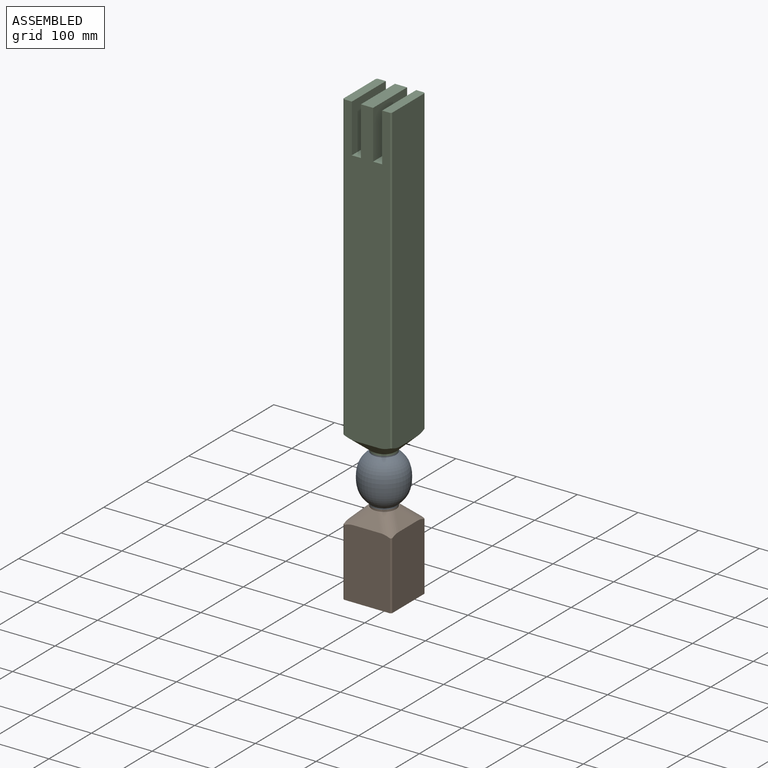
[diagram: assembled view]
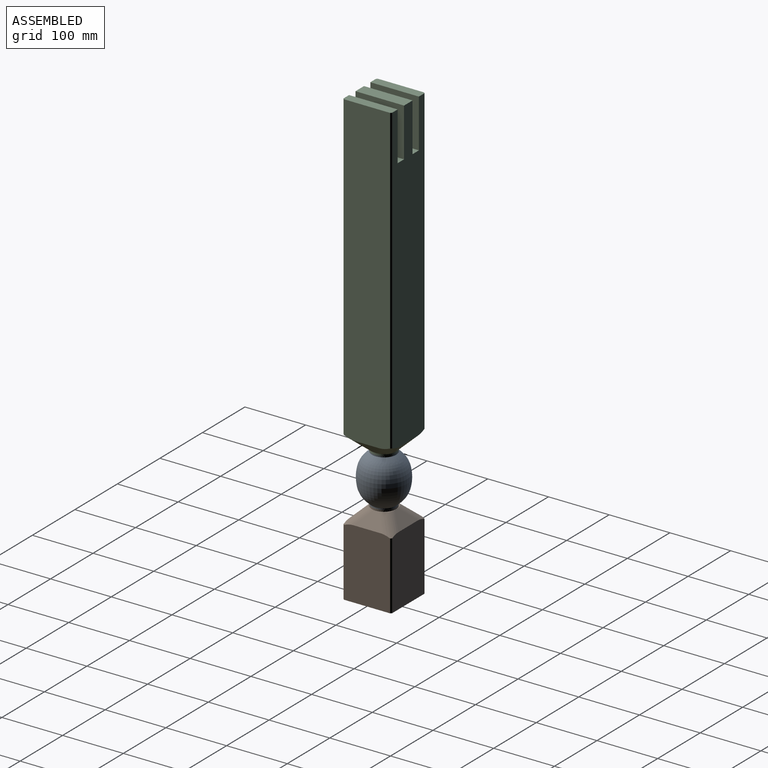
[diagram: assembled view, second angle]
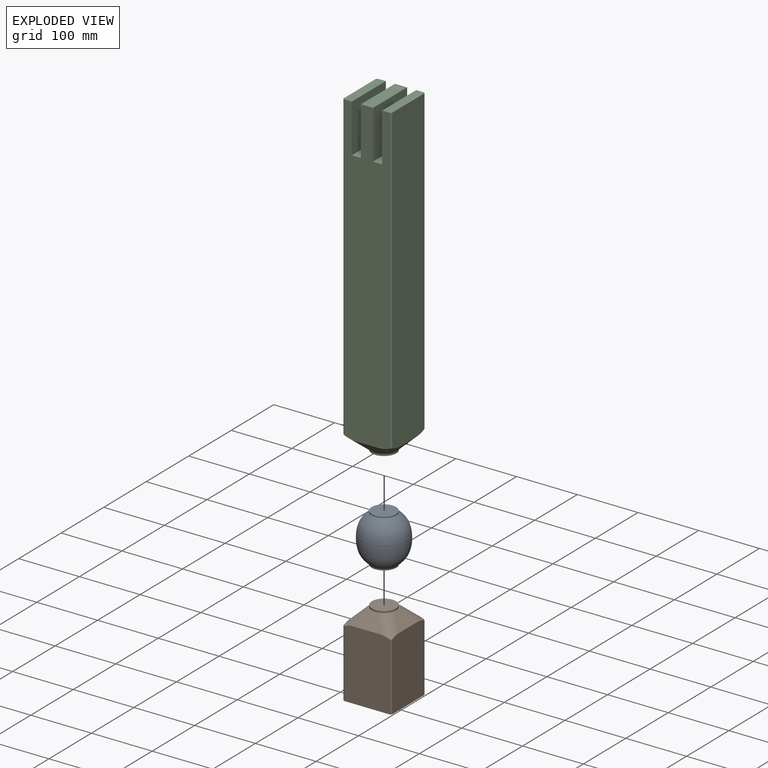
[diagram: exploded view]
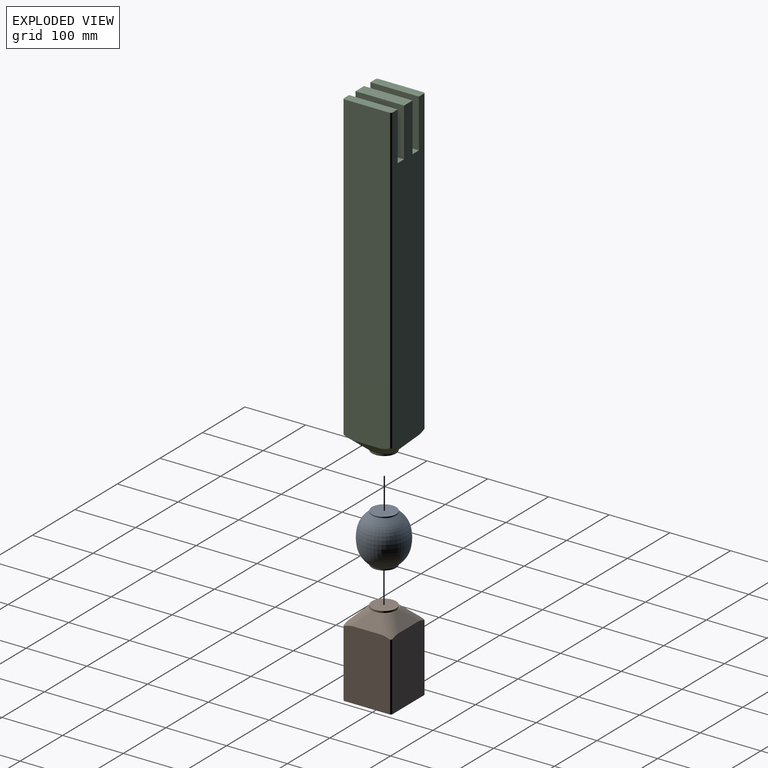
[diagram: exploded view, second angle]
ASSEMBLY  parts=3 mates=2
PART A: 5 faces, bbox 76.1x80x76.1 mm
  f0: plane 40x40mm, normal (0,-1,0), area 1256.6mm2, adj f4
  f1: plane 40x40mm, normal (0,1,0), area 1256.6mm2, adj f2
  f2: cylinder r=20mm len=40mm, axis (0,-1,0), area 251.3mm2, adj f1,f3
  f3: revolved ~76.13x76.13mm, area 17733.7mm2, adj f2,f4
  f4: cylinder r=20mm len=40mm, axis (0,-1,0), area 251.3mm2, adj f0,f3
PART B: 23 faces, bbox 92.4x92.4x138 mm
  f0: plane 20x20mm, normal (0,0,1), area 31.8mm2, adj f4,f11,f13,f18
  f1: plane 20x20mm, normal (0,0,1), area 31.8mm2, adj f3,f11,f13,f17
  f2: plane 20x20mm, normal (0,0,1), area 31.8mm2, adj f4,f11,f14,f16
  f3: plane 45.92x20mm, normal (0,0.71,0.71), area 733.1mm2, adj f1,f6,f9,f15,f17
  f4: plane 45.92x20mm, normal (0,-0.71,0.71), area 733.1mm2, adj f0,f2,f8,f16,f18
  f5: plane 115x76mm, normal (1,0,0), area 8702.3mm2, adj f10,f14,f15,f16,f20,f21
  f6: plane 20x20mm, normal (0,0,1), area 31.8mm2, adj f3,f11,f14,f15
  f7: plane 115x76mm, normal (-1,0,0), area 8702.3mm2, adj f10,f13,f17,f18,f19,f22
  f8: plane 115x76mm, normal (0,-1,0), area 8702.3mm2, adj f4,f10,f16,f18,f21,f22
  f9: plane 115x76mm, normal (0,1,0), area 8702.3mm2, adj f3,f10,f15,f17,f19,f20
  f10: plane 80x80mm, normal (0,0,-1), area 6392mm2, adj f5,f7,f8,f9,f19,f20,f21,f22
  f11: cylinder r=20mm len=40mm, axis (0,0,-1), area 377mm2, adj f0,f1,f2,f6,f12
  f12: plane 40x40mm, normal (0,0,1), area 1256.6mm2, adj f11
  f13: plane 45.92x20mm, normal (-0.71,0,0.71), area 733.1mm2, adj f0,f1,f7,f17,f18
  f14: plane 45.92x20mm, normal (0.71,0,0.71), area 733.1mm2, adj f2,f5,f6,f15,f16
  f15: cylinder r=24.1mm len=43.26mm, axis (0.58,0.58,-0.58), area 938.9mm2, adj f3,f5,f6,f9,f14,f20
  f16: cylinder r=24.1mm len=43.26mm, axis (-0.58,0.58,0.58), area 938.9mm2, adj f2,f4,f5,f8,f14,f21
  f17: cylinder r=24.1mm len=43.26mm, axis (0.58,-0.58,0.58), area 938.9mm2, adj f1,f3,f7,f9,f13,f19
  f18: cylinder r=24.1mm len=43.26mm, axis (-0.58,-0.58,-0.58), area 938.9mm2, adj f0,f4,f7,f8,f13,f22
  f19: plane 111.43x2mm, normal (-0.71,0.71,0), area 315.1mm2, adj f7,f9,f10,f17
  f20: plane 111.43x2mm, normal (0.71,0.71,0), area 315.1mm2, adj f5,f9,f10,f15
  f21: plane 111.43x2mm, normal (0.71,-0.71,0), area 315.1mm2, adj f5,f8,f10,f16
  f22: plane 111.43x2mm, normal (-0.71,-0.71,0), area 315.1mm2, adj f7,f8,f10,f18
PART C: 31 faces, bbox 94.8x94.8x527.1 mm
  f0: plane 20x20mm, normal (0,0,-1), area 12.9mm2, adj f10,f13,f21,f24
  f1: plane 20x20mm, normal (0,0,-1), area 12.9mm2, adj f10,f14,f21,f23
  f2: plane 20x20mm, normal (0,0,-1), area 12.9mm2, adj f11,f14,f21,f25
  f3: plane 80x15mm, normal (0,0,1), area 1196mm2, adj f6,f9,f12,f18,f29,f30
  f4: plane 80x20mm, normal (0,0,1), area 1600mm2, adj f6,f12,f15,f19
  f5: plane 80x15mm, normal (0,0,1), area 1196mm2, adj f6,f8,f12,f16,f27,f28
  f6: plane 504x76mm, normal (0,-1,0), area 35850.3mm2, adj f3,f4,f5,f11,f15,f16,f17,f18
  f7: plane 20x20mm, normal (0,0,-1), area 12.9mm2, adj f11,f13,f21,f26
  f8: plane 504x76mm, normal (1,0,0), area 38250.3mm2, adj f5,f14,f23,f25,f27,f28
  f9: plane 504x76mm, normal (-1,0,0), area 38250.3mm2, adj f3,f13,f24,f26,f29,f30
  f10: plane 40.4x20mm, normal (0,0.71,-0.71), area 577.1mm2, adj f0,f1,f12,f23,f24
  f11: plane 40.4x20mm, normal (0,-0.71,-0.71), area 577.1mm2, adj f2,f6,f7,f25,f26
  f12: plane 504x76mm, normal (0,1,0), area 35850.3mm2, adj f3,f4,f5,f10,f15,f16,f17,f18
  f13: plane 40.4x20mm, normal (-0.71,0,-0.71), area 577.1mm2, adj f0,f7,f9,f24,f26
  f14: plane 40.4x20mm, normal (0.71,0,-0.71), area 577.1mm2, adj f1,f2,f8,f23,f25
  f15: plane 80x80mm, normal (1,0,0), area 6400mm2, adj f4,f6,f12,f17
  f16: plane 80x80mm, normal (-1,0,0), area 6400mm2, adj f5,f6,f12,f17
  f17: plane 80x15mm, normal (0,0,1), area 1200mm2, adj f6,f12,f15,f16
  f18: plane 80x80mm, normal (1,0,0), area 6400mm2, adj f3,f6,f12,f20
  f19: plane 80x80mm, normal (-1,0,0), area 6400mm2, adj f4,f6,f12,f20
  f20: plane 80x15mm, normal (0,0,1), area 1200mm2, adj f6,f12,f18,f19
  f21: cylinder r=20mm len=40mm, axis (0,0,1), area 377mm2, adj f0,f1,f2,f7,f22
  f22: plane 40x40mm, normal (0,0,-1), area 1256.6mm2, adj f21
  f23: cylinder r=28mm len=47.18mm, axis (-0.58,-0.58,-0.58), area 1103.9mm2, adj f1,f8,f10,f12,f14,f27
  f24: cylinder r=28mm len=47.18mm, axis (-0.58,0.58,0.58), area 1103.9mm2, adj f0,f9,f10,f12,f13,f29
  f25: cylinder r=28mm len=47.18mm, axis (0.58,-0.58,0.58), area 1103.9mm2, adj f2,f6,f8,f11,f14,f28
  f26: cylinder r=28mm len=47.18mm, axis (0.58,0.58,-0.58), area 1103.9mm2, adj f6,f7,f9,f11,f13,f30
  f27: plane 499.7x2mm, normal (0.71,0.71,0), area 1413.3mm2, adj f5,f8,f12,f23
  f28: plane 499.7x2mm, normal (0.71,-0.71,0), area 1413.3mm2, adj f5,f6,f8,f25
  f29: plane 499.7x2mm, normal (-0.71,0.71,0), area 1413.3mm2, adj f3,f9,f12,f24
  f30: plane 499.7x2mm, normal (-0.71,-0.71,0), area 1413.3mm2, adj f3,f6,f9,f26
PLACE A rot(axis=(1,0,0),90deg) t=(-27.99,-0.25,-267.64)mm
PLACE B t=(-27.99,39.75,-390.14)mm
PLACE C t=(-27.99,39.75,25.36)mm fixed
MATE fastened A.f2 <-> C.f21  axis (0,0,1) through (-27.99,-0.25,-239.64)mm
MATE fastened B.f11 <-> A.f2  axis (0,0,1) through (-27.99,-0.25,-319.64)mm
